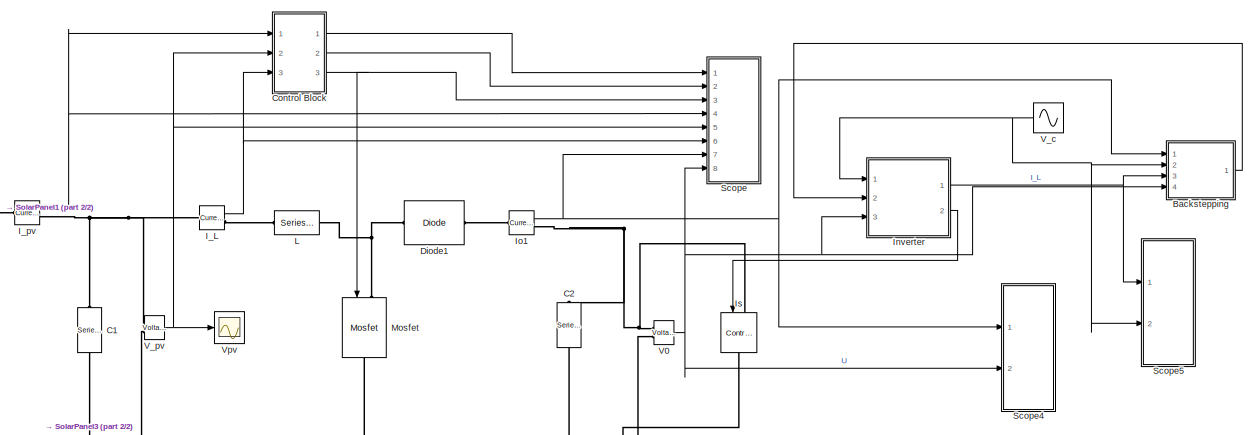
[diagram: root canvas - part 1/2, center side, full height]
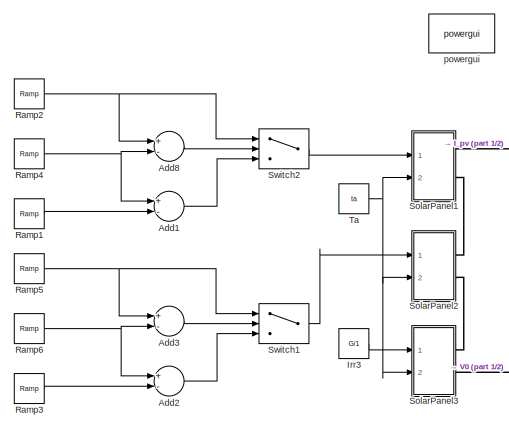
[diagram: root canvas - part 2/2, left side, full height]
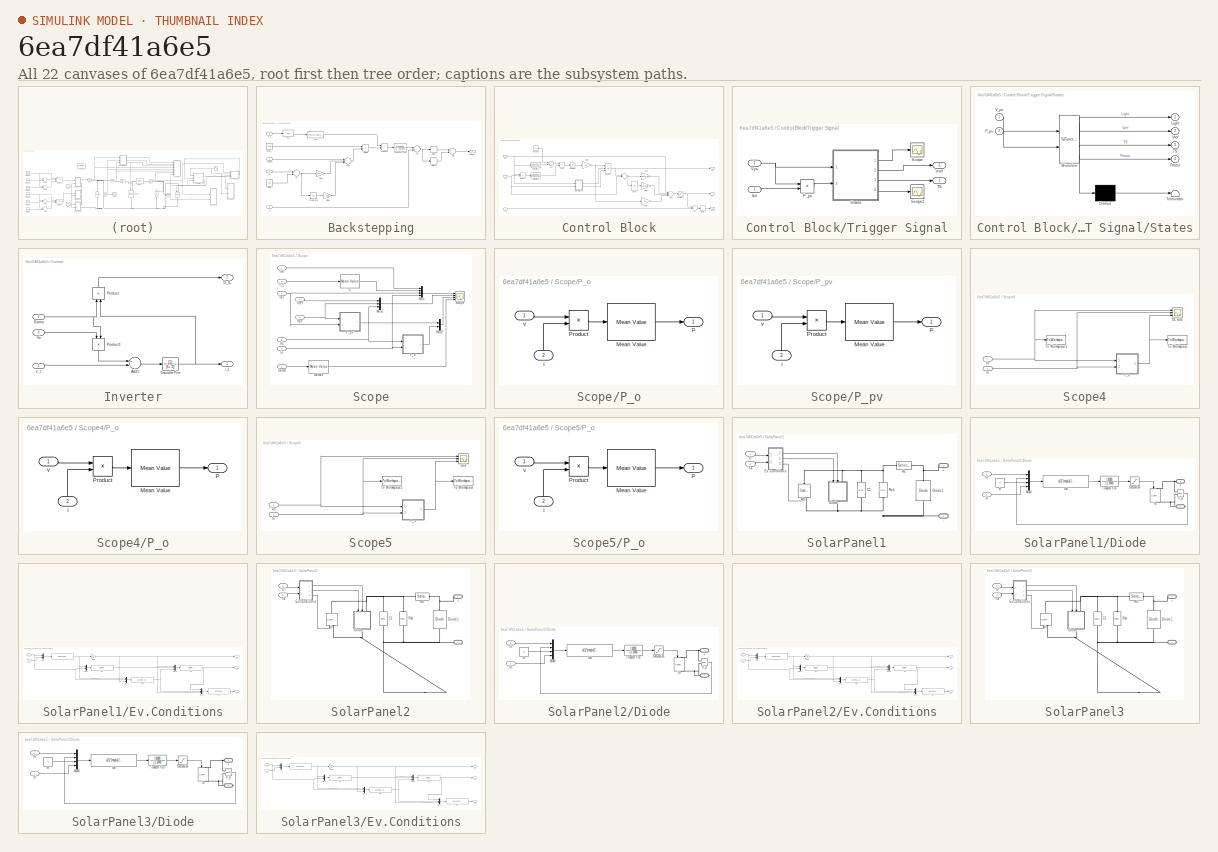
[diagram: thumbnail index - all 22 canvases of the model, root first then tree order]
MODEL slx_6ea7df41a6e5
KIND model
CONFIG AbsTol = auto
CONFIG FixedStep = auto
CONFIG MaxStep = 1e-4
CONFIG MinStep = auto
CONFIG RelTol = 1e-3
CONFIG SampleTimeConstraint = Unconstrained
CONFIG Solver = ode23s
CONFIG SolverMode = Auto
CONFIG SolverName = ode23s
CONFIG StartTime = 0.0
CONFIG StopTime = 0.1
BLOCK [Sum] Add1
  InputSameDT = off
  Inputs = +-
  OutDataTypeStr = Inherit: Inherit via internal rule
  Ports = [2, 1]
  SaturateOnIntegerOverflow = off
BLOCK [Sum] Add2
  InputSameDT = off
  Inputs = +-
  OutDataTypeStr = Inherit: Inherit via internal rule
  Ports = [2, 1]
  SaturateOnIntegerOverflow = off
BLOCK [Sum] Add3
  InputSameDT = off
  Inputs = +-
  OutDataTypeStr = Inherit: Inherit via internal rule
  Ports = [2, 1]
  SaturateOnIntegerOverflow = off
BLOCK [Sum] Add8
  InputSameDT = off
  Inputs = +-
  OutDataTypeStr = Inherit: Inherit via internal rule
  Ports = [2, 1]
  SaturateOnIntegerOverflow = off
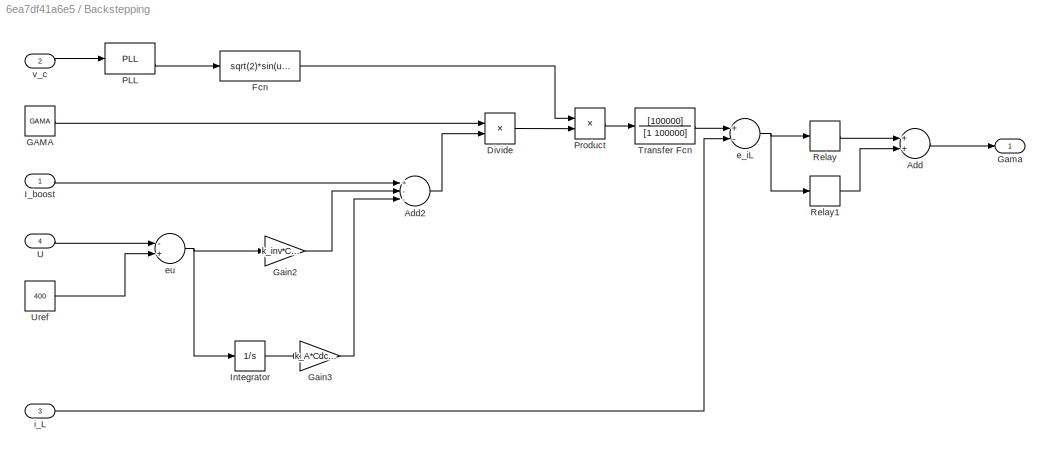
BLOCK [SubSystem] Backstepping
  Ports = [4, 1]
  RequestExecContextInheritance = off
  Variant = off
BLOCK [Sum] Backstepping/Add
  InputSameDT = off
  OutDataTypeStr = Inherit: Inherit via internal rule
  Ports = [2, 1]
  SaturateOnIntegerOverflow = off
BLOCK [Sum] Backstepping/Add2
  InputSameDT = off
  Inputs = +--
  OutDataTypeStr = Inherit: Inherit via internal rule
  Ports = [3, 1]
  SaturateOnIntegerOverflow = off
BLOCK [Product] Backstepping/Divide
  InputSameDT = off
  Inputs = /*
  OutDataTypeStr = Inherit: Inherit via internal rule
  Ports = [2, 1]
  RndMeth = Floor
  SaturateOnIntegerOverflow = off
BLOCK [Fcn] Backstepping/Fcn
  Expr = sqrt(2)*sin(u(1))
BLOCK [Constant] Backstepping/GAMA
  Value = GAMA
BLOCK [Gain] Backstepping/Gain2
  Gain = k_inv*Cdc_inv
  OutDataTypeStr = Inherit: Inherit via internal rule
  ParamDataTypeStr = Inherit: Inherit via internal rule
  SaturateOnIntegerOverflow = off
BLOCK [Gain] Backstepping/Gain3
  Gain = k_A*Cdc_inv
  OutDataTypeStr = Inherit: Inherit via internal rule
  ParamDataTypeStr = Inherit: Inherit via internal rule
  SaturateOnIntegerOverflow = off
BLOCK [Outport] Backstepping/Gama
  IconDisplay = Port number
BLOCK [Inport] Backstepping/I_boost
  IconDisplay = Port number
BLOCK [Integrator] Backstepping/Integrator
  LowerSaturationLimit = -30
  Ports = [1, 1]
  UpperSaturationLimit = 30
BLOCK [Reference] Backstepping/PLL  REF=powerlib_meascontrol/PLL/PLL
  Ports = [1, 2]
  SourceBlock = powerlib_meascontrol/PLL/PLL
  SourceType = PLL
BLOCK [Product] Backstepping/Product
  InputSameDT = off
  OutDataTypeStr = Inherit: Inherit via internal rule
  Ports = [2, 1]
  RndMeth = Floor
  SaturateOnIntegerOverflow = off
BLOCK [Relay] Backstepping/Relay
  InputProcessing = Elements as channels (sample based)
  OffOutputValue = -0.5
  OffSwitchValue = -delta_Ii
  OnOutputValue = 0.5
  OnSwitchValue = delta_Ii
  ZeroCross = off
BLOCK [Relay] Backstepping/Relay1
  InputProcessing = Elements as channels (sample based)
  OffOutputValue = -0.5
  OffSwitchValue = -delta_Ii/2
  OnOutputValue = 0.5
  OnSwitchValue = delta_Ii/2
  ZeroCross = off
BLOCK [TransferFcn] Backstepping/Transfer Fcn
  Denominator = [1 100000]
  Numerator = [100000]
BLOCK [Inport] Backstepping/U
  IconDisplay = Port number
  Port = 4
BLOCK [Constant] Backstepping/Uref
  Value = 400
BLOCK [Sum] Backstepping/e_iL
  InputSameDT = off
  Inputs = +-
  OutDataTypeStr = Inherit: Inherit via internal rule
  Ports = [2, 1]
  SaturateOnIntegerOverflow = off
BLOCK [Sum] Backstepping/eu
  InputSameDT = off
  Inputs = -+
  OutDataTypeStr = Inherit: Inherit via internal rule
  Ports = [2, 1]
  SaturateOnIntegerOverflow = off
BLOCK [Inport] Backstepping/i_L
  IconDisplay = Port number
  Port = 3
BLOCK [Inport] Backstepping/v_c
  IconDisplay = Port number
  Port = 2
BLOCK [Reference] C1  REF=powerlib/Elements/Series RLC Branch
  Ports = [0, 0, 0, 0, 0, 1, 1]
  SourceBlock = powerlib/Elements/Series RLC Branch
  SourceType = Series RLC Branch
BLOCK [Reference] C2  REF=powerlib/Elements/Series RLC Branch
  Ports = [0, 0, 0, 0, 0, 1, 1]
  SourceBlock = powerlib/Elements/Series RLC Branch
  SourceType = Series RLC Branch
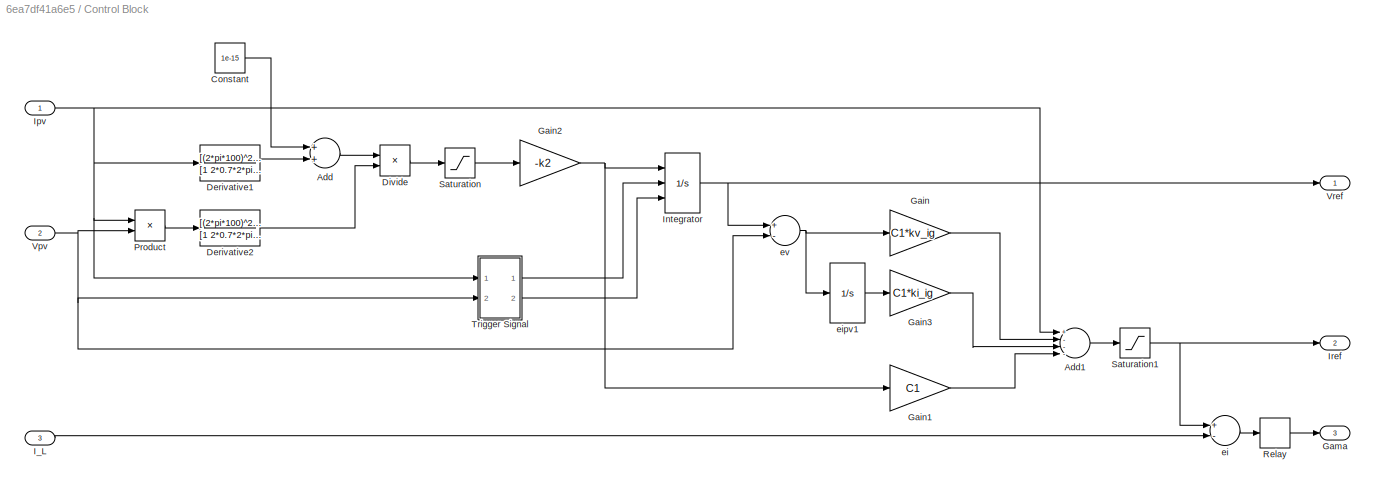
BLOCK [SubSystem] Control Block
  Ports = [3, 3]
  RequestExecContextInheritance = off
  Variant = off
BLOCK [Sum] Control Block/Add
  InputSameDT = off
  OutDataTypeStr = Inherit: Inherit via internal rule
  Ports = [2, 1]
  SaturateOnIntegerOverflow = off
BLOCK [Sum] Control Block/Add1
  InputSameDT = off
  Inputs = +---
  OutDataTypeStr = Inherit: Inherit via internal rule
  Ports = [4, 1]
  SaturateOnIntegerOverflow = off
BLOCK [Constant] Control Block/Constant
  Value = 1e-15
BLOCK [TransferFcn] Control Block/Derivative1
  Denominator = [1 2*0.7*2*pi*100 (2*pi*100)^2]
  Numerator = [(2*pi*100)^2 0]
BLOCK [TransferFcn] Control Block/Derivative2
  Denominator = [1 2*0.7*2*pi*100 (2*pi*100)^2]
  Numerator = [(2*pi*100)^2 0]
BLOCK [Product] Control Block/Divide
  InputSameDT = off
  Inputs = /*
  OutDataTypeStr = Inherit: Inherit via internal rule
  Ports = [2, 1]
  RndMeth = Floor
  SaturateOnIntegerOverflow = off
BLOCK [Gain] Control Block/Gain
  Gain = C1*kv_ig
  OutDataTypeStr = Inherit: Inherit via internal rule
  ParamDataTypeStr = Inherit: Inherit via internal rule
  SaturateOnIntegerOverflow = off
BLOCK [Gain] Control Block/Gain1
  Gain = C1
  OutDataTypeStr = Inherit: Inherit via internal rule
  ParamDataTypeStr = Inherit: Inherit via internal rule
  SaturateOnIntegerOverflow = off
BLOCK [Gain] Control Block/Gain2
  Gain = -k2
  OutDataTypeStr = Inherit: Inherit via internal rule
  ParamDataTypeStr = Inherit: Inherit via internal rule
  SaturateOnIntegerOverflow = off
BLOCK [Gain] Control Block/Gain3
  Gain = C1*ki_ig
  OutDataTypeStr = Inherit: Inherit via internal rule
  ParamDataTypeStr = Inherit: Inherit via internal rule
  SaturateOnIntegerOverflow = off
BLOCK [Outport] Control Block/Gama
  IconDisplay = Port number
  Port = 3
BLOCK [Inport] Control Block/I_L
  IconDisplay = Port number
  Port = 3
BLOCK [Integrator] Control Block/Integrator
  ExternalReset = rising
  InitialCondition = Voc*0.75
  InitialConditionSource = external
  LimitOutput = on
  LowerSaturationLimit = 0
  Ports = [3, 1]
  UpperSaturationLimit = Voc*3
BLOCK [Inport] Control Block/Ipv
  IconDisplay = Port number
BLOCK [Outport] Control Block/Iref
  IconDisplay = Port number
  Port = 2
BLOCK [Product] Control Block/Product
  InputSameDT = off
  Inputs = **
  OutDataTypeStr = Inherit: Inherit via internal rule
  Ports = [2, 1]
  RndMeth = Floor
  SaturateOnIntegerOverflow = off
BLOCK [Relay] Control Block/Relay
  InputProcessing = Elements as channels (sample based)
  OffSwitchValue = -delta_Il
  OnSwitchValue = delta_Il
BLOCK [Saturate] Control Block/Saturation
  InputPortMap = u0
  LowerLimit = -2
  Ports = [1, 1]
  UpperLimit = 2
BLOCK [Saturate] Control Block/Saturation1
  InputPortMap = u0
  LowerLimit = 0
  Ports = [1, 1]
  UpperLimit = Isc*1.2
BLOCK [SubSystem] Control Block/Trigger Signal
  Ports = [2, 2]
  RequestExecContextInheritance = off
  Variant = off
BLOCK [Inport] Control Block/Trigger Signal/Ipv
  IconDisplay = Port number
BLOCK [Product] Control Block/Trigger Signal/P_pv
  InputSameDT = off
  OutDataTypeStr = Inherit: Inherit via internal rule
  Ports = [2, 1]
  RndMeth = Floor
  SaturateOnIntegerOverflow = off
BLOCK [Scope] Control Block/Trigger Signal/Scope
  Ports = [1]
  ScopeSpecificationString = Simulink.scopes.TimeScopeBlockCfg('CurrentConfiguration', extmgr.ConfigurationSet(extmgr.Configuration('Core','General UI',true),extmgr.Configuration('Core','Source UI',true),extmgr.Configuration('Sources','WiredSimulink',true,'DataLoggingVariableName','ScopeData1'),extmgr.Configuration('Visuals','Time Domain',true,'SerializedDisplays',{struct('MinYLimReal','-0.25','MaxYLimReal','2.25','YLabelReal...<+1452ch>
BLOCK [Scope] Control Block/Trigger Signal/Scope1
  Ports = [1]
  ScopeSpecificationString = Simulink.scopes.TimeScopeBlockCfg('CurrentConfiguration', extmgr.ConfigurationSet(extmgr.Configuration('Core','General UI',true),extmgr.Configuration('Core','Source UI',true),extmgr.Configuration('Sources','WiredSimulink',true,'DataLoggingVariableName','ScopeData1'),extmgr.Configuration('Visuals','Time Domain',true,'SerializedDisplays',{struct('MinYLimReal','-90.85887','MaxYLimReal','817.72981','Y...<+1486ch>
BLOCK [SubSystem] Control Block/Trigger Signal/States
  ErrorFcn = Stateflow.Translate.translate
  PermitHierarchicalResolution = ExplicitOnly
  Ports = [2, 4]
  RequestExecContextInheritance = off
  SFBlockType = Chart
  TreatAsAtomicUnit = on
  Variant = off
BLOCK [Demux] Control Block/Trigger Signal/States/ Demux 
  Outputs = 1
  Ports = [1, 1]
BLOCK [S-Function] Control Block/Trigger Signal/States/ SFunction 
  EnableBusSupport = on
  FunctionName = sf_sfun
  Parameters = GREEN,OFF,ON,ORANGE,RED,Voc,t_int,trigger_signal
  PortCounts = [2 5]
  Ports = [2, 5]
  SFunctionDeploymentMode = off
  Tag = Stateflow S-Function PanelwInverter_Backstepping 3
BLOCK [Terminator] Control Block/Trigger Signal/States/ Terminator 
BLOCK [Outport] Control Block/Trigger Signal/States/Light
  IconDisplay = Port number
BLOCK [Inport] Control Block/Trigger Signal/States/P_pv
  IconDisplay = Port number
  Port = 2
BLOCK [Outport] Control Block/Trigger Signal/States/Pmem
  IconDisplay = Port number
  Port = 4
BLOCK [Outport] Control Block/Trigger Signal/States/TS
  IconDisplay = Port number
  Port = 3
BLOCK [Inport] Control Block/Trigger Signal/States/V_pv
  IconDisplay = Port number
BLOCK [Outport] Control Block/Trigger Signal/States/Vref
  IconDisplay = Port number
  Port = 2
BLOCK [Outport] Control Block/Trigger Signal/TS
  IconDisplay = Port number
BLOCK [Inport] Control Block/Trigger Signal/Vpv
  IconDisplay = Port number
  Port = 2
BLOCK [Outport] Control Block/Trigger Signal/Vref
  IconDisplay = Port number
  Port = 2
BLOCK [Inport] Control Block/Vpv
  IconDisplay = Port number
  Port = 2
BLOCK [Outport] Control Block/Vref
  IconDisplay = Port number
BLOCK [Sum] Control Block/ei
  InputSameDT = off
  Inputs = +-
  OutDataTypeStr = Inherit: Inherit via internal rule
  Ports = [2, 1]
  SaturateOnIntegerOverflow = off
BLOCK [Integrator] Control Block/eipv1
  LowerSaturationLimit = 0
  Ports = [1, 1]
  UpperSaturationLimit = Voc*N
BLOCK [Sum] Control Block/ev
  InputSameDT = off
  Inputs = +-
  OutDataTypeStr = Inherit: Inherit via internal rule
  Ports = [2, 1]
  SaturateOnIntegerOverflow = off
BLOCK [Reference] Diode1  REF=powerlib/Power
Electronics/Diode
  Ports = [0, 0, 0, 0, 0, 1, 1]
  SourceBlock = powerlib/Power\nElectronics/Diode
  SourceType = Diode
BLOCK [Reference] I_L  REF=powerlib/Measurements/Current Measurement
  Ports = [0, 1, 0, 0, 0, 1, 1]
  SourceBlock = powerlib/Measurements/Current Measurement
  SourceType = Current Measurement
BLOCK [Reference] I_pv  REF=powerlib/Measurements/Current Measurement
  Ports = [0, 1, 0, 0, 0, 1, 1]
  SourceBlock = powerlib/Measurements/Current Measurement
  SourceType = Current Measurement
BLOCK [SubSystem] Inverter
  Ports = [3, 2]
  RequestExecContextInheritance = off
  Variant = off
BLOCK [Sum] Inverter/Add1
  InputSameDT = off
  Inputs = +-
  OutDataTypeStr = Inherit: Inherit via internal rule
  Ports = [2, 1]
  SaturateOnIntegerOverflow = off
BLOCK [Outport] Inverter/G_IL
  IconDisplay = Port number
  Port = 2
BLOCK [Inport] Inverter/Gama
  IconDisplay = Port number
  Port = 2
BLOCK [Product] Inverter/Product
  InputSameDT = off
  OutDataTypeStr = Inherit: Inherit via internal rule
  Ports = [2, 1]
  RndMeth = Floor
  SaturateOnIntegerOverflow = off
BLOCK [Product] Inverter/Product1
  InputSameDT = off
  OutDataTypeStr = Inherit: Inherit via internal rule
  Ports = [2, 1]
  RndMeth = Floor
  SaturateOnIntegerOverflow = off
BLOCK [TransferFcn] Inverter/Transfer Fcn
  Denominator = [Li 3]
BLOCK [Inport] Inverter/Vo
  IconDisplay = Port number
  Port = 3
BLOCK [Outport] Inverter/i_L
  IconDisplay = Port number
BLOCK [Inport] Inverter/v_c
  IconDisplay = Port number
BLOCK [Reference] Io1  REF=powerlib/Measurements/Current Measurement
  Ports = [0, 1, 0, 0, 0, 1, 1]
  SourceBlock = powerlib/Measurements/Current Measurement
  SourceType = Current Measurement
BLOCK [Constant] Irr3
  Value = G/1
BLOCK [Reference] Is  REF=powerlib/Electrical
Sources/Controlled Current Source
  Ports = [1, 0, 0, 0, 0, 1, 1]
  SourceBlock = powerlib/Electrical\nSources/Controlled Current Source
  SourceType = Controlled Current Source
BLOCK [Reference] L  REF=powerlib/Elements/Series RLC Branch
  Ports = [0, 0, 0, 0, 0, 1, 1]
  SourceBlock = powerlib/Elements/Series RLC Branch
  SourceType = Series RLC Branch
BLOCK [Reference] Mosfet  REF=powerlib/Power
Electronics/Mosfet
  Ports = [1, 0, 0, 0, 0, 1, 1]
  SourceBlock = powerlib/Power\nElectronics/Mosfet
  SourceType = Mosfet
BLOCK [Reference] Ramp1  REF=simulink/Sources/Ramp
  Ports = [0, 1]
  SourceBlock = simulink/Sources/Ramp
  SourceType = Ramp
BLOCK [Reference] Ramp2  REF=simulink/Sources/Ramp
  Ports = [0, 1]
  SourceBlock = simulink/Sources/Ramp
  SourceType = Ramp
BLOCK [Reference] Ramp3  REF=simulink/Sources/Ramp
  Ports = [0, 1]
  SourceBlock = simulink/Sources/Ramp
  SourceType = Ramp
BLOCK [Reference] Ramp4  REF=simulink/Sources/Ramp
  Ports = [0, 1]
  SourceBlock = simulink/Sources/Ramp
  SourceType = Ramp
BLOCK [Reference] Ramp5  REF=simulink/Sources/Ramp
  Ports = [0, 1]
  SourceBlock = simulink/Sources/Ramp
  SourceType = Ramp
BLOCK [Reference] Ramp6  REF=simulink/Sources/Ramp
  Ports = [0, 1]
  SourceBlock = simulink/Sources/Ramp
  SourceType = Ramp
BLOCK [SubSystem] Scope
  Ports = [8]
  RequestExecContextInheritance = off
  Variant = off
BLOCK [Inport] Scope/Gama
  IconDisplay = Port number
  Port = 3
BLOCK [Reference] Scope/Gama1  REF=powerlib_extras/Measurements/Mean Value
  Ports = [1, 1]
  SourceBlock = powerlib_extras/Measurements/Mean Value
  SourceType = Mean value
BLOCK [Reference] Scope/IL  REF=powerlib_extras/Measurements/Mean Value
  Ports = [1, 1]
  SourceBlock = powerlib_extras/Measurements/Mean Value
  SourceType = Mean value
BLOCK [Inport] Scope/I_L
  IconDisplay = Port number
  Port = 6
BLOCK [Inport] Scope/Io
  IconDisplay = Port number
  Port = 7
BLOCK [Inport] Scope/Ipv
  IconDisplay = Port number
  Port = 4
BLOCK [Inport] Scope/Iref
  IconDisplay = Port number
  Port = 2
BLOCK [Mux] Scope/Mux
  DisplayOption = bar
  Ports = [4, 1]
BLOCK [Mux] Scope/Mux1
  DisplayOption = bar
  Inputs = 3
  Ports = [3, 1]
BLOCK [Mux] Scope/Mux2
  DisplayOption = bar
  Inputs = 2
  Ports = [2, 1]
BLOCK [SubSystem] Scope/P_o
  Ports = [2, 1]
  RequestExecContextInheritance = off
  Variant = off
BLOCK [Reference] Scope/P_o/Mean Value  REF=powerlib_extras/Measurements/Mean Value
  Ports = [1, 1]
  SourceBlock = powerlib_extras/Measurements/Mean Value
  SourceType = Mean value
BLOCK [Outport] Scope/P_o/P
  IconDisplay = Port number
BLOCK [Product] Scope/P_o/Product
  InputSameDT = off
  OutDataTypeStr = Inherit: Inherit via internal rule
  Ports = [2, 1]
  RndMeth = Floor
  SaturateOnIntegerOverflow = off
BLOCK [Inport] Scope/P_o/i
  IconDisplay = Port number
  Port = 2
BLOCK [Inport] Scope/P_o/v
  IconDisplay = Port number
BLOCK [SubSystem] Scope/P_pv
  Ports = [2, 1]
  RequestExecContextInheritance = off
  Variant = off
BLOCK [Reference] Scope/P_pv/Mean Value  REF=powerlib_extras/Measurements/Mean Value
  Ports = [1, 1]
  SourceBlock = powerlib_extras/Measurements/Mean Value
  SourceType = Mean value
BLOCK [Outport] Scope/P_pv/P
  IconDisplay = Port number
BLOCK [Product] Scope/P_pv/Product
  InputSameDT = off
  OutDataTypeStr = Inherit: Inherit via internal rule
  Ports = [2, 1]
  RndMeth = Floor
  SaturateOnIntegerOverflow = off
BLOCK [Inport] Scope/P_pv/i
  IconDisplay = Port number
  Port = 2
BLOCK [Inport] Scope/P_pv/v
  IconDisplay = Port number
BLOCK [Scope] Scope/Scope
  NumInputPorts = 4
  Ports = [4]
  ScopeSpecificationString = Simulink.scopes.TimeScopeBlockCfg('CurrentConfiguration', extmgr.ConfigurationSet(extmgr.Configuration('Core','General UI',true),extmgr.Configuration('Core','Source UI',true),extmgr.Configuration('Sources','WiredSimulink',true),extmgr.Configuration('Visuals','Time Domain',true,'SerializedDisplays',{struct('MinYLimReal','-1.72608','MaxYLimReal','12.86806','YLabelReal','','MinYLimMag','0.00000','Max...<+3457ch>
BLOCK [Inport] Scope/Vo
  IconDisplay = Port number
  Port = 8
BLOCK [Inport] Scope/Vpv
  IconDisplay = Port number
  Port = 5
BLOCK [Inport] Scope/Vref
  IconDisplay = Port number
BLOCK [SubSystem] Scope4
  Ports = [2]
  RequestExecContextInheritance = off
  Variant = off
BLOCK [Scope] Scope4/DC side
  NumInputPorts = 3
  Ports = [3]
  ScopeSpecificationString = Simulink.scopes.TimeScopeBlockCfg('CurrentConfiguration', extmgr.ConfigurationSet(extmgr.Configuration('Core','General UI',true),extmgr.Configuration('Core','Source UI',true),extmgr.Configuration('Sources','WiredSimulink',true),extmgr.Configuration('Visuals','Time Domain',true,'SerializedDisplays',{struct('MinYLimReal','389.15785','MaxYLimReal','412.70712','YLabelReal','','MinYLimMag','389.15785',...<+2750ch>
BLOCK [Inport] Scope4/Io
  IconDisplay = Port number
BLOCK [SubSystem] Scope4/P_o
  Ports = [2, 1]
  RequestExecContextInheritance = off
  Variant = off
BLOCK [Reference] Scope4/P_o/Mean Value  REF=powerlib_extras/Measurements/Mean Value
  Ports = [1, 1]
  SourceBlock = powerlib_extras/Measurements/Mean Value
  SourceType = Mean value
BLOCK [Outport] Scope4/P_o/P
  IconDisplay = Port number
BLOCK [Product] Scope4/P_o/Product
  InputSameDT = off
  OutDataTypeStr = Inherit: Inherit via internal rule
  Ports = [2, 1]
  RndMeth = Floor
  SaturateOnIntegerOverflow = off
BLOCK [Inport] Scope4/P_o/i
  IconDisplay = Port number
  Port = 2
BLOCK [Inport] Scope4/P_o/v
  IconDisplay = Port number
BLOCK [ToWorkspace] Scope4/To Workspace
  FixptAsFi = on
  MaxDataPoints = inf
  Ports = [1]
  SampleTime = -1
  Save2DSignal = 3-D array (concatenate along third dimension)
  SaveFormat = Timeseries
  VariableName = Po
BLOCK [ToWorkspace] Scope4/To Workspace1
  FixptAsFi = on
  MaxDataPoints = inf
  Ports = [1]
  SampleTime = -1
  Save2DSignal = 3-D array (concatenate along third dimension)
  SaveFormat = Timeseries
  VariableName = Vo
BLOCK [Inport] Scope4/Vo
  IconDisplay = Port number
  Port = 2
BLOCK [SubSystem] Scope5
  Ports = [2]
  RequestExecContextInheritance = off
  Variant = off
BLOCK [Scope] Scope5/Grid
  NumInputPorts = 3
  Ports = [3]
  ScopeSpecificationString = Simulink.scopes.TimeScopeBlockCfg('CurrentConfiguration', extmgr.ConfigurationSet(extmgr.Configuration('Core','General UI',true),extmgr.Configuration('Core','Source UI',true),extmgr.Configuration('Sources','WiredSimulink',true),extmgr.Configuration('Visuals','Time Domain',true,'SerializedDisplays',{struct('MinYLimReal','-406.5864','MaxYLimReal','406.5864','YLabelReal','','MinYLimMag',' 0.00000','M...<+2742ch>
BLOCK [Inport] Scope5/Io
  IconDisplay = Port number
BLOCK [SubSystem] Scope5/P_o
  Ports = [2, 1]
  RequestExecContextInheritance = off
  Variant = off
BLOCK [Reference] Scope5/P_o/Mean Value  REF=powerlib_extras/Measurements/Mean Value
  Ports = [1, 1]
  SourceBlock = powerlib_extras/Measurements/Mean Value
  SourceType = Mean value
BLOCK [Outport] Scope5/P_o/P
  IconDisplay = Port number
BLOCK [Product] Scope5/P_o/Product
  InputSameDT = off
  OutDataTypeStr = Inherit: Inherit via internal rule
  Ports = [2, 1]
  RndMeth = Floor
  SaturateOnIntegerOverflow = off
BLOCK [Inport] Scope5/P_o/i
  IconDisplay = Port number
  Port = 2
BLOCK [Inport] Scope5/P_o/v
  IconDisplay = Port number
BLOCK [ToWorkspace] Scope5/To Workspace
  FixptAsFi = on
  MaxDataPoints = inf
  Ports = [1]
  SampleTime = -1
  Save2DSignal = 3-D array (concatenate along third dimension)
  SaveFormat = Timeseries
  VariableName = Pg
BLOCK [ToWorkspace] Scope5/To Workspace1
  FixptAsFi = on
  MaxDataPoints = inf
  Ports = [1]
  SampleTime = -1
  Save2DSignal = 3-D array (concatenate along third dimension)
  SaveFormat = Timeseries
  VariableName = Ig
BLOCK [Inport] Scope5/Vo
  IconDisplay = Port number
  Port = 2
BLOCK [SubSystem] SolarPanel1
  Ports = [2, 0, 0, 0, 0, 0, 2]
  RequestExecContextInheritance = off
  Variant = off
BLOCK [PMIOPort] SolarPanel1/+
  Port = 1
  Side = Right
BLOCK [PMIOPort] SolarPanel1/-
  Port = 2
  Side = Right
BLOCK [Reference] SolarPanel1/C1  REF=powerlib/Elements/Series RLC Branch
  Ports = [0, 0, 0, 0, 0, 1, 1]
  SourceBlock = powerlib/Elements/Series RLC Branch
  SourceType = Series RLC Branch
BLOCK [SubSystem] SolarPanel1/Diode
  AncestorBlock = re_lib/Solar/PV Array/Diode Rsh
  Ports = [2, 0, 0, 0, 0, 1, 1]
  RequestExecContextInheritance = off
  Variant = off
BLOCK [PMIOPort] SolarPanel1/Diode/+
  Port = 1
  Side = Left
BLOCK [PMIOPort] SolarPanel1/Diode/-
  Port = 2
  Side = Right
BLOCK [Fcn] SolarPanel1/Diode/I0d
  Expr = u(1)*(exp(u(2)/(u(3)*u(4)))-1)
BLOCK [Reference] SolarPanel1/Diode/Id  REF=powerlib/Electrical
Sources/Controlled Current Source
  Ports = [1, 0, 0, 0, 0, 1, 1]
  SourceBlock = powerlib/Electrical\nSources/Controlled Current Source
  SourceType = Controlled Current Source
BLOCK [Inport] SolarPanel1/Diode/Io
  IconDisplay = Port number
BLOCK [Mux] SolarPanel1/Diode/Mux4
  DisplayOption = bar
  Ports = [4, 1]
BLOCK [Saturate] SolarPanel1/Diode/Saturation
  InputPortMap = u0
  LowerLimit = 0
  Ports = [1, 1]
  UpperLimit = Isc
BLOCK [TransferFcn] SolarPanel1/Diode/Transfer Fcn
  Denominator = [1 1000]
  Numerator = [1000]
BLOCK [Reference] SolarPanel1/Diode/V_d  REF=powerlib/Measurements/Voltage Measurement
  Ports = [0, 1, 0, 0, 0, 2]
  SourceBlock = powerlib/Measurements/Voltage Measurement
  SourceType = Voltage Measurement
BLOCK [Inport] SolarPanel1/Diode/Vt
  IconDisplay = Port number
  Port = 2
BLOCK [Constant] SolarPanel1/Diode/m
  Value = m
BLOCK [Reference] SolarPanel1/Diode1  REF=powerlib/Power
Electronics/Diode
  Ports = [0, 0, 0, 0, 0, 1, 1]
  SourceBlock = powerlib/Power\nElectronics/Diode
  SourceType = Diode
BLOCK [SubSystem] SolarPanel1/Ev.Conditions
  Ports = [2, 3]
  RequestExecContextInheritance = off
  Variant = off
BLOCK [Inport] SolarPanel1/Ev.Conditions/G
  IconDisplay = Port number
BLOCK [Gain] SolarPanel1/Ev.Conditions/Gain
  Gain = K/q
  OutDataTypeStr = Inherit: Inherit via internal rule
  ParamDataTypeStr = Inherit: Inherit via internal rule
  SaturateOnIntegerOverflow = off
BLOCK [Fcn] SolarPanel1/Ev.Conditions/I0o
  Expr = (u(2) - (u(3) - Rs*u(2))/ Rsh) * exp(-u(3)/ (m*u(1)))
BLOCK [Fcn] SolarPanel1/Ev.Conditions/I0s
  Expr = u(1) * exp(u(2)/ (m*u(3))) + u(2)/ Rsh
BLOCK [Outport] SolarPanel1/Ev.Conditions/Io
  IconDisplay = Port number
  Port = 2
BLOCK [Outport] SolarPanel1/Ev.Conditions/Is
  IconDisplay = Port number
  Port = 3
BLOCK [Fcn] SolarPanel1/Ev.Conditions/Isc
  Expr = u(2)/ Gr * (Iscr + miu_Isc*(u(1) - Tr))
BLOCK [Mux] SolarPanel1/Ev.Conditions/Mux
  DisplayOption = bar
  Inputs = 2
  Ports = [2, 1]
BLOCK [Mux] SolarPanel1/Ev.Conditions/Mux1
  DisplayOption = bar
  Inputs = 2
  Ports = [2, 1]
BLOCK [Mux] SolarPanel1/Ev.Conditions/Mux2
  DisplayOption = bar
  Inputs = 3
  Ports = [3, 1]
BLOCK [Mux] SolarPanel1/Ev.Conditions/Mux3
  DisplayOption = bar
  Inputs = 3
  Ports = [3, 1]
BLOCK [Mux] SolarPanel1/Ev.Conditions/Mux4
  DisplayOption = bar
  Inputs = 3
  Ports = [3, 1]
BLOCK [Inport] SolarPanel1/Ev.Conditions/Ta
  IconDisplay = Port number
  Port = 2
BLOCK [Fcn] SolarPanel1/Ev.Conditions/Tc
  Expr = u(2)+u(1)*(NOCT-20)/800+T
BLOCK [Fcn] SolarPanel1/Ev.Conditions/Voc
  Expr = Vocr + miu_Voc*(u(1) - Tr) + m*u(3)*log(u(2)/Gr)
BLOCK [Outport] SolarPanel1/Ev.Conditions/Vt
  IconDisplay = Port number
BLOCK [Inport] SolarPanel1/G
  IconDisplay = Port number
BLOCK [Reference] SolarPanel1/Is  REF=powerlib/Electrical
Sources/Controlled Current Source
  Ports = [1, 0, 0, 0, 0, 1, 1]
  SourceBlock = powerlib/Electrical\nSources/Controlled Current Source
  SourceType = Controlled Current Source
BLOCK [Reference] SolarPanel1/Rs  REF=powerlib/Elements/Series RLC Branch
  Ports = [0, 0, 0, 0, 0, 1, 1]
  SourceBlock = powerlib/Elements/Series RLC Branch
  SourceType = Series RLC Branch
BLOCK [Reference] SolarPanel1/Rsh  REF=powerlib/Elements/Series RLC Branch
  Ports = [0, 0, 0, 0, 0, 1, 1]
  SourceBlock = powerlib/Elements/Series RLC Branch
  SourceType = Series RLC Branch
BLOCK [Inport] SolarPanel1/Ta
  IconDisplay = Port number
  Port = 2
BLOCK [SubSystem] SolarPanel2
  Ports = [2, 0, 0, 0, 0, 0, 2]
  RequestExecContextInheritance = off
  Variant = off
BLOCK [PMIOPort] SolarPanel2/+
  Port = 1
  Side = Right
BLOCK [PMIOPort] SolarPanel2/-
  Port = 2
  Side = Right
BLOCK [Reference] SolarPanel2/C1  REF=powerlib/Elements/Series RLC Branch
  Ports = [0, 0, 0, 0, 0, 1, 1]
  SourceBlock = powerlib/Elements/Series RLC Branch
  SourceType = Series RLC Branch
BLOCK [SubSystem] SolarPanel2/Diode
  AncestorBlock = re_lib/Solar/PV Array/Diode Rsh
  Ports = [2, 0, 0, 0, 0, 1, 1]
  RequestExecContextInheritance = off
  Variant = off
BLOCK [PMIOPort] SolarPanel2/Diode/+
  Port = 1
  Side = Left
BLOCK [PMIOPort] SolarPanel2/Diode/-
  Port = 2
  Side = Right
BLOCK [Fcn] SolarPanel2/Diode/I0d
  Expr = u(1)*(exp(u(2)/(u(3)*u(4)))-1)
BLOCK [Reference] SolarPanel2/Diode/Id  REF=powerlib/Electrical
Sources/Controlled Current Source
  Ports = [1, 0, 0, 0, 0, 1, 1]
  SourceBlock = powerlib/Electrical\nSources/Controlled Current Source
  SourceType = Controlled Current Source
BLOCK [Inport] SolarPanel2/Diode/Io
  IconDisplay = Port number
BLOCK [Mux] SolarPanel2/Diode/Mux4
  DisplayOption = bar
  Ports = [4, 1]
BLOCK [Saturate] SolarPanel2/Diode/Saturation
  InputPortMap = u0
  LowerLimit = 0
  Ports = [1, 1]
  UpperLimit = Isc
BLOCK [TransferFcn] SolarPanel2/Diode/Transfer Fcn
  Denominator = [1 1000]
  Numerator = [1000]
BLOCK [Reference] SolarPanel2/Diode/V_d  REF=powerlib/Measurements/Voltage Measurement
  Ports = [0, 1, 0, 0, 0, 2]
  SourceBlock = powerlib/Measurements/Voltage Measurement
  SourceType = Voltage Measurement
BLOCK [Inport] SolarPanel2/Diode/Vt
  IconDisplay = Port number
  Port = 2
BLOCK [Constant] SolarPanel2/Diode/m
  Value = m
BLOCK [Reference] SolarPanel2/Diode1  REF=powerlib/Power
Electronics/Diode
  Ports = [0, 0, 0, 0, 0, 1, 1]
  SourceBlock = powerlib/Power\nElectronics/Diode
  SourceType = Diode
BLOCK [SubSystem] SolarPanel2/Ev.Conditions
  Ports = [2, 3]
  RequestExecContextInheritance = off
  Variant = off
BLOCK [Inport] SolarPanel2/Ev.Conditions/G
  IconDisplay = Port number
BLOCK [Gain] SolarPanel2/Ev.Conditions/Gain
  Gain = K/q
  OutDataTypeStr = Inherit: Inherit via internal rule
  ParamDataTypeStr = Inherit: Inherit via internal rule
  SaturateOnIntegerOverflow = off
BLOCK [Fcn] SolarPanel2/Ev.Conditions/I0o
  Expr = (u(2) - (u(3) - Rs*u(2))/ Rsh) * exp(-u(3)/ (m*u(1)))
BLOCK [Fcn] SolarPanel2/Ev.Conditions/I0s
  Expr = u(1) * exp(u(2)/ (m*u(3))) + u(2)/ Rsh
BLOCK [Outport] SolarPanel2/Ev.Conditions/Io
  IconDisplay = Port number
  Port = 2
BLOCK [Outport] SolarPanel2/Ev.Conditions/Is
  IconDisplay = Port number
  Port = 3
BLOCK [Fcn] SolarPanel2/Ev.Conditions/Isc
  Expr = u(2)/ Gr * (Iscr + miu_Isc*(u(1) - Tr))
BLOCK [Mux] SolarPanel2/Ev.Conditions/Mux
  DisplayOption = bar
  Inputs = 2
  Ports = [2, 1]
BLOCK [Mux] SolarPanel2/Ev.Conditions/Mux1
  DisplayOption = bar
  Inputs = 2
  Ports = [2, 1]
BLOCK [Mux] SolarPanel2/Ev.Conditions/Mux2
  DisplayOption = bar
  Inputs = 3
  Ports = [3, 1]
BLOCK [Mux] SolarPanel2/Ev.Conditions/Mux3
  DisplayOption = bar
  Inputs = 3
  Ports = [3, 1]
BLOCK [Mux] SolarPanel2/Ev.Conditions/Mux4
  DisplayOption = bar
  Inputs = 3
  Ports = [3, 1]
BLOCK [Inport] SolarPanel2/Ev.Conditions/Ta
  IconDisplay = Port number
  Port = 2
BLOCK [Fcn] SolarPanel2/Ev.Conditions/Tc
  Expr = u(2)+u(1)*(NOCT-20)/800+T
BLOCK [Fcn] SolarPanel2/Ev.Conditions/Voc
  Expr = Vocr + miu_Voc*(u(1) - Tr) + m*u(3)*log(u(2)/Gr)
BLOCK [Outport] SolarPanel2/Ev.Conditions/Vt
  IconDisplay = Port number
BLOCK [Inport] SolarPanel2/G
  IconDisplay = Port number
BLOCK [Reference] SolarPanel2/Is  REF=powerlib/Electrical
Sources/Controlled Current Source
  Ports = [1, 0, 0, 0, 0, 1, 1]
  SourceBlock = powerlib/Electrical\nSources/Controlled Current Source
  SourceType = Controlled Current Source
BLOCK [Reference] SolarPanel2/Rs  REF=powerlib/Elements/Series RLC Branch
  Ports = [0, 0, 0, 0, 0, 1, 1]
  SourceBlock = powerlib/Elements/Series RLC Branch
  SourceType = Series RLC Branch
BLOCK [Reference] SolarPanel2/Rsh  REF=powerlib/Elements/Series RLC Branch
  Ports = [0, 0, 0, 0, 0, 1, 1]
  SourceBlock = powerlib/Elements/Series RLC Branch
  SourceType = Series RLC Branch
BLOCK [Inport] SolarPanel2/Ta
  IconDisplay = Port number
  Port = 2
BLOCK [SubSystem] SolarPanel3
  Ports = [2, 0, 0, 0, 0, 0, 2]
  RequestExecContextInheritance = off
  Variant = off
BLOCK [PMIOPort] SolarPanel3/+
  Port = 1
  Side = Right
BLOCK [PMIOPort] SolarPanel3/-
  Port = 2
  Side = Right
BLOCK [Reference] SolarPanel3/C1  REF=powerlib/Elements/Series RLC Branch
  Ports = [0, 0, 0, 0, 0, 1, 1]
  SourceBlock = powerlib/Elements/Series RLC Branch
  SourceType = Series RLC Branch
BLOCK [SubSystem] SolarPanel3/Diode
  AncestorBlock = re_lib/Solar/PV Array/Diode Rsh
  Ports = [2, 0, 0, 0, 0, 1, 1]
  RequestExecContextInheritance = off
  Variant = off
BLOCK [PMIOPort] SolarPanel3/Diode/+
  Port = 1
  Side = Left
BLOCK [PMIOPort] SolarPanel3/Diode/-
  Port = 2
  Side = Right
BLOCK [Fcn] SolarPanel3/Diode/I0d
  Expr = u(1)*(exp(u(2)/(u(3)*u(4)))-1)
BLOCK [Reference] SolarPanel3/Diode/Id  REF=powerlib/Electrical
Sources/Controlled Current Source
  Ports = [1, 0, 0, 0, 0, 1, 1]
  SourceBlock = powerlib/Electrical\nSources/Controlled Current Source
  SourceType = Controlled Current Source
BLOCK [Inport] SolarPanel3/Diode/Io
  IconDisplay = Port number
BLOCK [Mux] SolarPanel3/Diode/Mux4
  DisplayOption = bar
  Ports = [4, 1]
BLOCK [Saturate] SolarPanel3/Diode/Saturation
  InputPortMap = u0
  LowerLimit = 0
  Ports = [1, 1]
  UpperLimit = Isc
BLOCK [TransferFcn] SolarPanel3/Diode/Transfer Fcn
  Denominator = [1 1000]
  Numerator = [1000]
BLOCK [Reference] SolarPanel3/Diode/V_d  REF=powerlib/Measurements/Voltage Measurement
  Ports = [0, 1, 0, 0, 0, 2]
  SourceBlock = powerlib/Measurements/Voltage Measurement
  SourceType = Voltage Measurement
BLOCK [Inport] SolarPanel3/Diode/Vt
  IconDisplay = Port number
  Port = 2
BLOCK [Constant] SolarPanel3/Diode/m
  Value = m
BLOCK [Reference] SolarPanel3/Diode1  REF=powerlib/Power
Electronics/Diode
  Ports = [0, 0, 0, 0, 0, 1, 1]
  SourceBlock = powerlib/Power\nElectronics/Diode
  SourceType = Diode
BLOCK [SubSystem] SolarPanel3/Ev.Conditions
  Ports = [2, 3]
  RequestExecContextInheritance = off
  Variant = off
BLOCK [Inport] SolarPanel3/Ev.Conditions/G
  IconDisplay = Port number
BLOCK [Gain] SolarPanel3/Ev.Conditions/Gain
  Gain = K/q
  OutDataTypeStr = Inherit: Inherit via internal rule
  ParamDataTypeStr = Inherit: Inherit via internal rule
  SaturateOnIntegerOverflow = off
BLOCK [Fcn] SolarPanel3/Ev.Conditions/I0o
  Expr = (u(2) - (u(3) - Rs*u(2))/ Rsh) * exp(-u(3)/ (m*u(1)))
BLOCK [Fcn] SolarPanel3/Ev.Conditions/I0s
  Expr = u(1) * exp(u(2)/ (m*u(3))) + u(2)/ Rsh
BLOCK [Outport] SolarPanel3/Ev.Conditions/Io
  IconDisplay = Port number
  Port = 2
BLOCK [Outport] SolarPanel3/Ev.Conditions/Is
  IconDisplay = Port number
  Port = 3
BLOCK [Fcn] SolarPanel3/Ev.Conditions/Isc
  Expr = u(2)/ Gr * (Iscr + miu_Isc*(u(1) - Tr))
BLOCK [Mux] SolarPanel3/Ev.Conditions/Mux
  DisplayOption = bar
  Inputs = 2
  Ports = [2, 1]
BLOCK [Mux] SolarPanel3/Ev.Conditions/Mux1
  DisplayOption = bar
  Inputs = 2
  Ports = [2, 1]
BLOCK [Mux] SolarPanel3/Ev.Conditions/Mux2
  DisplayOption = bar
  Inputs = 3
  Ports = [3, 1]
BLOCK [Mux] SolarPanel3/Ev.Conditions/Mux3
  DisplayOption = bar
  Inputs = 3
  Ports = [3, 1]
BLOCK [Mux] SolarPanel3/Ev.Conditions/Mux4
  DisplayOption = bar
  Inputs = 3
  Ports = [3, 1]
BLOCK [Inport] SolarPanel3/Ev.Conditions/Ta
  IconDisplay = Port number
  Port = 2
BLOCK [Fcn] SolarPanel3/Ev.Conditions/Tc
  Expr = u(2)+u(1)*(NOCT-20)/800+T
BLOCK [Fcn] SolarPanel3/Ev.Conditions/Voc
  Expr = Vocr + miu_Voc*(u(1) - Tr) + m*u(3)*log(u(2)/Gr)
BLOCK [Outport] SolarPanel3/Ev.Conditions/Vt
  IconDisplay = Port number
BLOCK [Inport] SolarPanel3/G
  IconDisplay = Port number
BLOCK [Reference] SolarPanel3/Is  REF=powerlib/Electrical
Sources/Controlled Current Source
  Ports = [1, 0, 0, 0, 0, 1, 1]
  SourceBlock = powerlib/Electrical\nSources/Controlled Current Source
  SourceType = Controlled Current Source
BLOCK [Reference] SolarPanel3/Rs  REF=powerlib/Elements/Series RLC Branch
  Ports = [0, 0, 0, 0, 0, 1, 1]
  SourceBlock = powerlib/Elements/Series RLC Branch
  SourceType = Series RLC Branch
BLOCK [Reference] SolarPanel3/Rsh  REF=powerlib/Elements/Series RLC Branch
  Ports = [0, 0, 0, 0, 0, 1, 1]
  SourceBlock = powerlib/Elements/Series RLC Branch
  SourceType = Series RLC Branch
BLOCK [Inport] SolarPanel3/Ta
  IconDisplay = Port number
  Port = 2
BLOCK [Switch] Switch1
  Criteria = u2 > Threshold
  InputSameDT = off
  SaturateOnIntegerOverflow = off
BLOCK [Switch] Switch2
  Criteria = u2 > Threshold
  InputSameDT = off
  SaturateOnIntegerOverflow = off
BLOCK [Constant] Ta
  Value = ta
BLOCK [Reference] V0  REF=powerlib/Measurements/Voltage Measurement
  Ports = [0, 1, 0, 0, 0, 2]
  SourceBlock = powerlib/Measurements/Voltage Measurement
  SourceType = Voltage Measurement
BLOCK [Sin] V_c
  Amplitude = sqrt(2)*230
  Frequency = 2*pi*50
  Ports = [0, 1]
  SampleTime = 0
BLOCK [Reference] V_pv  REF=powerlib/Measurements/Voltage Measurement
  Ports = [0, 1, 0, 0, 0, 2]
  SourceBlock = powerlib/Measurements/Voltage Measurement
  SourceType = Voltage Measurement
BLOCK [Scope] Vpv
  Ports = [1]
  ScopeSpecificationString = Simulink.scopes.TimeScopeBlockCfg('CurrentConfiguration', extmgr.ConfigurationSet(extmgr.Configuration('Core','General UI',true),extmgr.Configuration('Core','Source UI',true),extmgr.Configuration('Sources','WiredSimulink',true,'DataLoggingVariableName','ScopeData1'),extmgr.Configuration('Visuals','Time Domain',true,'SerializedDisplays',{struct('MinYLimReal','-12.93801','MaxYLimReal','116.31696','Y...<+1521ch>
BLOCK [Reference] powergui  REF=powerlib/powergui
  Ports = []
  Priority = 1
  SourceBlock = powerlib/powergui
  SourceType = PSB option menu block
  UserDataPersistent = on
LINE Add1:1 -> Switch2:3
LINE Add2:1 -> Switch1:3
LINE Add3:1 -> Switch1:2
LINE Add8:1 -> Switch2:2
LINE Backstepping/Add2:1 -> Backstepping/Divide:2
LINE Backstepping/Add:1 -> Backstepping/Gama:1
LINE Backstepping/Divide:1 -> Backstepping/Product:2
LINE Backstepping/Fcn:1 -> Backstepping/Product:1
LINE Backstepping/GAMA:1 -> Backstepping/Divide:1
LINE Backstepping/Gain2:1 -> Backstepping/Add2:2
LINE Backstepping/Gain3:1 -> Backstepping/Add2:3
LINE Backstepping/I_boost:1 -> Backstepping/Add2:1
LINE Backstepping/Integrator:1 -> Backstepping/Gain3:1
LINE Backstepping/PLL:2 -> Backstepping/Fcn:1
LINE Backstepping/Product:1 -> Backstepping/Transfer Fcn:1
LINE Backstepping/Relay1:1 -> Backstepping/Add:2
LINE Backstepping/Relay:1 -> Backstepping/Add:1
LINE Backstepping/Transfer Fcn:1 -> Backstepping/e_iL:1
LINE Backstepping/U:1 -> Backstepping/eu:1
LINE Backstepping/Uref:1 -> Backstepping/eu:2
NET Backstepping/e_iL:1 -> Backstepping/Relay1:1, Backstepping/Relay:1
NET Backstepping/eu:1 -> Backstepping/Gain2:1, Backstepping/Integrator:1
LINE Backstepping/i_L:1 -> Backstepping/e_iL:2
LINE Backstepping/v_c:1 -> Backstepping/PLL:1
LINE Backstepping:1 -> Inverter:2
LINE Control Block/Add1:1 -> Control Block/Saturation1:1
LINE Control Block/Add:1 -> Control Block/Divide:1
LINE Control Block/Constant:1 -> Control Block/Add:1
LINE Control Block/Derivative1:1 -> Control Block/Add:2
LINE Control Block/Derivative2:1 -> Control Block/Divide:2
LINE Control Block/Divide:1 -> Control Block/Saturation:1
LINE Control Block/Gain1:1 -> Control Block/Add1:4
NET Control Block/Gain2:1 -> Control Block/Gain1:1, Control Block/Integrator:1
LINE Control Block/Gain3:1 -> Control Block/Add1:3
LINE Control Block/Gain:1 -> Control Block/Add1:2
LINE Control Block/I_L:1 -> Control Block/ei:2
NET Control Block/Integrator:1 -> Control Block/Vref:1, Control Block/ev:1
NET Control Block/Ipv:1 -> Control Block/Add1:1, Control Block/Derivative1:1, Control Block/Product:1, Control Block/Trigger Signal:1
LINE Control Block/Product:1 -> Control Block/Derivative2:1
LINE Control Block/Relay:1 -> Control Block/Gama:1
NET Control Block/Saturation1:1 -> Control Block/Iref:1, Control Block/ei:1
LINE Control Block/Saturation:1 -> Control Block/Gain2:1
LINE Control Block/Trigger Signal/Ipv:1 -> Control Block/Trigger Signal/P_pv:2
LINE Control Block/Trigger Signal/P_pv:1 -> Control Block/Trigger Signal/States:2
LINE Control Block/Trigger Signal/States:1 -> Control Block/Trigger Signal/Scope:1
LINE Control Block/Trigger Signal/States:2 -> Control Block/Trigger Signal/Vref:1
LINE Control Block/Trigger Signal/States:3 -> Control Block/Trigger Signal/TS:1
LINE Control Block/Trigger Signal/States:4 -> Control Block/Trigger Signal/Scope1:1
NET Control Block/Trigger Signal/Vpv:1 -> Control Block/Trigger Signal/P_pv:1, Control Block/Trigger Signal/States:1
LINE Control Block/Trigger Signal:1 -> Control Block/Integrator:2
LINE Control Block/Trigger Signal:2 -> Control Block/Integrator:3
NET Control Block/Vpv:1 -> Control Block/Product:2, Control Block/Trigger Signal:2, Control Block/ev:2
LINE Control Block/ei:1 -> Control Block/Relay:1
LINE Control Block/eipv1:1 -> Control Block/Gain3:1
NET Control Block/ev:1 -> Control Block/Gain:1, Control Block/eipv1:1
LINE Control Block:1 -> Scope:1
LINE Control Block:2 -> Scope:2
NET Control Block:3 -> Mosfet:1, Scope:3
NET I_L:1 -> Control Block:3, Scope:6
NET I_pv:1 -> Control Block:1, Scope:4
LINE Inverter/Add1:1 -> Inverter/Transfer Fcn:1
NET Inverter/Gama:1 -> Inverter/Product1:2, Inverter/Product:1
LINE Inverter/Product1:1 -> Inverter/Add1:1
LINE Inverter/Product:1 -> Inverter/G_IL:1
NET Inverter/Transfer Fcn:1 -> Inverter/Product:2, Inverter/i_L:1
LINE Inverter/Vo:1 -> Inverter/Product1:1
LINE Inverter/v_c:1 -> Inverter/Add1:2
NET Inverter:1 -> Backstepping:3, Scope5:1
LINE Inverter:2 -> Is:1
NET Io1:1 -> Backstepping:1, Scope4:1, Scope:7
LINE Irr3:1 -> SolarPanel3:1
LINE Ramp1:1 -> Add1:2
NET Ramp2:1 -> Add8:1, Switch2:1
LINE Ramp3:1 -> Add2:2
NET Ramp4:1 -> Add1:1, Add8:2
NET Ramp5:1 -> Add3:1, Switch1:1
NET Ramp6:1 -> Add2:1, Add3:2
LINE Scope/Gama1:1 -> Scope/Scope:4
LINE Scope/Gama:1 -> Scope/Gama1:1
LINE Scope/IL:1 -> Scope/Mux:2
LINE Scope/I_L:1 -> Scope/IL:1
NET Scope/Io:1 -> Scope/Mux:4, Scope/P_o:2
NET Scope/Ipv:1 -> Scope/Mux:3, Scope/P_pv:2
LINE Scope/Iref:1 -> Scope/Mux:1
LINE Scope/Mux1:1 -> Scope/Scope:2
LINE Scope/Mux2:1 -> Scope/Scope:3
LINE Scope/Mux:1 -> Scope/Scope:1
LINE Scope/P_o/Mean Value:1 -> Scope/P_o/P:1
LINE Scope/P_o/Product:1 -> Scope/P_o/Mean Value:1
LINE Scope/P_o/i:1 -> Scope/P_o/Product:2
LINE Scope/P_o/v:1 -> Scope/P_o/Product:1
LINE Scope/P_o:1 -> Scope/Mux2:2
LINE Scope/P_pv/Mean Value:1 -> Scope/P_pv/P:1
LINE Scope/P_pv/Product:1 -> Scope/P_pv/Mean Value:1
LINE Scope/P_pv/i:1 -> Scope/P_pv/Product:2
LINE Scope/P_pv/v:1 -> Scope/P_pv/Product:1
LINE Scope/P_pv:1 -> Scope/Mux2:1
NET Scope/Vo:1 -> Scope/Mux1:3, Scope/P_o:1
NET Scope/Vpv:1 -> Scope/Mux1:2, Scope/P_pv:1
LINE Scope/Vref:1 -> Scope/Mux1:1
NET Scope4/Io:1 -> Scope4/DC side:2, Scope4/P_o:2
LINE Scope4/P_o/Mean Value:1 -> Scope4/P_o/P:1
LINE Scope4/P_o/Product:1 -> Scope4/P_o/Mean Value:1
LINE Scope4/P_o/i:1 -> Scope4/P_o/Product:2
LINE Scope4/P_o/v:1 -> Scope4/P_o/Product:1
NET Scope4/P_o:1 -> Scope4/DC side:3, Scope4/To Workspace:1
NET Scope4/Vo:1 -> Scope4/DC side:1, Scope4/P_o:1, Scope4/To Workspace1:1
NET Scope5/Io:1 -> Scope5/Grid:2, Scope5/P_o:2, Scope5/To Workspace1:1
LINE Scope5/P_o/Mean Value:1 -> Scope5/P_o/P:1
LINE Scope5/P_o/Product:1 -> Scope5/P_o/Mean Value:1
LINE Scope5/P_o/i:1 -> Scope5/P_o/Product:2
LINE Scope5/P_o/v:1 -> Scope5/P_o/Product:1
NET Scope5/P_o:1 -> Scope5/Grid:3, Scope5/To Workspace:1
NET Scope5/Vo:1 -> Scope5/Grid:1, Scope5/P_o:1
NET SolarPanel1/Ev.Conditions/G:1 -> SolarPanel1/Ev.Conditions/Mux1:2, SolarPanel1/Ev.Conditions/Mux2:2, SolarPanel1/Ev.Conditions/Mux:1
NET SolarPanel1/Ev.Conditions/Gain:1 -> SolarPanel1/Ev.Conditions/Mux2:3, SolarPanel1/Ev.Conditions/Mux3:1, SolarPanel1/Ev.Conditions/Mux4:3, SolarPanel1/Ev.Conditions/Vt:1
NET SolarPanel1/Ev.Conditions/I0o:1 -> SolarPanel1/Ev.Conditions/Io:1, SolarPanel1/Ev.Conditions/Mux4:1
LINE SolarPanel1/Ev.Conditions/I0s:1 -> SolarPanel1/Ev.Conditions/Is:1
LINE SolarPanel1/Ev.Conditions/Isc:1 -> SolarPanel1/Ev.Conditions/Mux3:2
LINE SolarPanel1/Ev.Conditions/Mux1:1 -> SolarPanel1/Ev.Conditions/Isc:1
LINE SolarPanel1/Ev.Conditions/Mux2:1 -> SolarPanel1/Ev.Conditions/Voc:1
LINE SolarPanel1/Ev.Conditions/Mux3:1 -> SolarPanel1/Ev.Conditions/I0o:1
LINE SolarPanel1/Ev.Conditions/Mux4:1 -> SolarPanel1/Ev.Conditions/I0s:1
LINE SolarPanel1/Ev.Conditions/Mux:1 -> SolarPanel1/Ev.Conditions/Tc:1
LINE SolarPanel1/Ev.Conditions/Ta:1 -> SolarPanel1/Ev.Conditions/Mux:2
NET SolarPanel1/Ev.Conditions/Tc:1 -> SolarPanel1/Ev.Conditions/Gain:1, SolarPanel1/Ev.Conditions/Mux1:1, SolarPanel1/Ev.Conditions/Mux2:1
NET SolarPanel1/Ev.Conditions/Voc:1 -> SolarPanel1/Ev.Conditions/Mux3:3, SolarPanel1/Ev.Conditions/Mux4:2
LINE SolarPanel1/Ev.Conditions:1 -> SolarPanel1/Diode:2
LINE SolarPanel1/Ev.Conditions:2 -> SolarPanel1/Diode:1
LINE SolarPanel1/Ev.Conditions:3 -> SolarPanel1/Is:1
LINE SolarPanel1/G:1 -> SolarPanel1/Ev.Conditions:1
LINE SolarPanel1/Ta:1 -> SolarPanel1/Ev.Conditions:2
NET SolarPanel2/Ev.Conditions/G:1 -> SolarPanel2/Ev.Conditions/Mux1:2, SolarPanel2/Ev.Conditions/Mux2:2, SolarPanel2/Ev.Conditions/Mux:1
NET SolarPanel2/Ev.Conditions/Gain:1 -> SolarPanel2/Ev.Conditions/Mux2:3, SolarPanel2/Ev.Conditions/Mux3:1, SolarPanel2/Ev.Conditions/Mux4:3, SolarPanel2/Ev.Conditions/Vt:1
NET SolarPanel2/Ev.Conditions/I0o:1 -> SolarPanel2/Ev.Conditions/Io:1, SolarPanel2/Ev.Conditions/Mux4:1
LINE SolarPanel2/Ev.Conditions/I0s:1 -> SolarPanel2/Ev.Conditions/Is:1
LINE SolarPanel2/Ev.Conditions/Isc:1 -> SolarPanel2/Ev.Conditions/Mux3:2
LINE SolarPanel2/Ev.Conditions/Mux1:1 -> SolarPanel2/Ev.Conditions/Isc:1
LINE SolarPanel2/Ev.Conditions/Mux2:1 -> SolarPanel2/Ev.Conditions/Voc:1
LINE SolarPanel2/Ev.Conditions/Mux3:1 -> SolarPanel2/Ev.Conditions/I0o:1
LINE SolarPanel2/Ev.Conditions/Mux4:1 -> SolarPanel2/Ev.Conditions/I0s:1
LINE SolarPanel2/Ev.Conditions/Mux:1 -> SolarPanel2/Ev.Conditions/Tc:1
LINE SolarPanel2/Ev.Conditions/Ta:1 -> SolarPanel2/Ev.Conditions/Mux:2
NET SolarPanel2/Ev.Conditions/Tc:1 -> SolarPanel2/Ev.Conditions/Gain:1, SolarPanel2/Ev.Conditions/Mux1:1, SolarPanel2/Ev.Conditions/Mux2:1
NET SolarPanel2/Ev.Conditions/Voc:1 -> SolarPanel2/Ev.Conditions/Mux3:3, SolarPanel2/Ev.Conditions/Mux4:2
LINE SolarPanel2/Ev.Conditions:1 -> SolarPanel2/Diode:2
LINE SolarPanel2/Ev.Conditions:2 -> SolarPanel2/Diode:1
LINE SolarPanel2/Ev.Conditions:3 -> SolarPanel2/Is:1
LINE SolarPanel2/G:1 -> SolarPanel2/Ev.Conditions:1
LINE SolarPanel2/Ta:1 -> SolarPanel2/Ev.Conditions:2
NET SolarPanel3/Ev.Conditions/G:1 -> SolarPanel3/Ev.Conditions/Mux1:2, SolarPanel3/Ev.Conditions/Mux2:2, SolarPanel3/Ev.Conditions/Mux:1
NET SolarPanel3/Ev.Conditions/Gain:1 -> SolarPanel3/Ev.Conditions/Mux2:3, SolarPanel3/Ev.Conditions/Mux3:1, SolarPanel3/Ev.Conditions/Mux4:3, SolarPanel3/Ev.Conditions/Vt:1
NET SolarPanel3/Ev.Conditions/I0o:1 -> SolarPanel3/Ev.Conditions/Io:1, SolarPanel3/Ev.Conditions/Mux4:1
LINE SolarPanel3/Ev.Conditions/I0s:1 -> SolarPanel3/Ev.Conditions/Is:1
LINE SolarPanel3/Ev.Conditions/Isc:1 -> SolarPanel3/Ev.Conditions/Mux3:2
LINE SolarPanel3/Ev.Conditions/Mux1:1 -> SolarPanel3/Ev.Conditions/Isc:1
LINE SolarPanel3/Ev.Conditions/Mux2:1 -> SolarPanel3/Ev.Conditions/Voc:1
LINE SolarPanel3/Ev.Conditions/Mux3:1 -> SolarPanel3/Ev.Conditions/I0o:1
LINE SolarPanel3/Ev.Conditions/Mux4:1 -> SolarPanel3/Ev.Conditions/I0s:1
LINE SolarPanel3/Ev.Conditions/Mux:1 -> SolarPanel3/Ev.Conditions/Tc:1
LINE SolarPanel3/Ev.Conditions/Ta:1 -> SolarPanel3/Ev.Conditions/Mux:2
NET SolarPanel3/Ev.Conditions/Tc:1 -> SolarPanel3/Ev.Conditions/Gain:1, SolarPanel3/Ev.Conditions/Mux1:1, SolarPanel3/Ev.Conditions/Mux2:1
NET SolarPanel3/Ev.Conditions/Voc:1 -> SolarPanel3/Ev.Conditions/Mux3:3, SolarPanel3/Ev.Conditions/Mux4:2
LINE SolarPanel3/Ev.Conditions:1 -> SolarPanel3/Diode:2
LINE SolarPanel3/Ev.Conditions:2 -> SolarPanel3/Diode:1
LINE SolarPanel3/Ev.Conditions:3 -> SolarPanel3/Is:1
LINE SolarPanel3/G:1 -> SolarPanel3/Ev.Conditions:1
LINE SolarPanel3/Ta:1 -> SolarPanel3/Ev.Conditions:2
LINE Switch1:1 -> SolarPanel2:1
LINE Switch2:1 -> SolarPanel1:1
NET Ta:1 -> SolarPanel1:2, SolarPanel2:2, SolarPanel3:2
NET V0:1 -> Backstepping:4, Inverter:3, Scope4:2, Scope:8
NET V_c:1 -> Backstepping:2, Inverter:1, Scope5:2
NET V_pv:1 -> Control Block:2, Scope:5, Vpv:1
PNET net1: C1:LConn1 -- I_L:LConn1 -- I_pv:RConn1 -- V_pv:LConn1
PNET net2: C1:RConn1 -- C2:RConn1 -- Is:RConn1 -- Mosfet:RConn1 -- SolarPanel3:RConn2 -- V0:LConn2 -- V_pv:LConn2
PNET net3: C2:LConn1 -- Io1:RConn1 -- Is:LConn1 -- V0:LConn1
PNET net4: Diode1:LConn1 -- L:RConn1 -- Mosfet:LConn1
PLINE Diode1:RConn1 -- Io1:LConn1
PLINE I_L:RConn1 -- L:LConn1
PLINE I_pv:LConn1 -- SolarPanel1:RConn1
PNET net5: SolarPanel1/+:RConn1 -- SolarPanel1/Diode1:RConn1 -- SolarPanel1/Rs:RConn1
PNET net6: SolarPanel1/-:RConn1 -- SolarPanel1/C1:RConn1 -- SolarPanel1/Diode1:LConn1 -- SolarPanel1/Diode:RConn1 -- SolarPanel1/Is:LConn1 -- SolarPanel1/Rsh:RConn1
PNET net7: SolarPanel1/C1:LConn1 -- SolarPanel1/Diode:LConn1 -- SolarPanel1/Is:RConn1 -- SolarPanel1/Rs:LConn1 -- SolarPanel1/Rsh:LConn1
PLINE SolarPanel1:RConn2 -- SolarPanel2:RConn1
PNET net8: SolarPanel2/+:RConn1 -- SolarPanel2/Diode1:RConn1 -- SolarPanel2/Rs:RConn1
PNET net9: SolarPanel2/-:RConn1 -- SolarPanel2/C1:RConn1 -- SolarPanel2/Diode1:LConn1 -- SolarPanel2/Diode:RConn1 -- SolarPanel2/Is:LConn1 -- SolarPanel2/Rsh:RConn1
PNET net10: SolarPanel2/C1:LConn1 -- SolarPanel2/Diode:LConn1 -- SolarPanel2/Is:RConn1 -- SolarPanel2/Rs:LConn1 -- SolarPanel2/Rsh:LConn1
PLINE SolarPanel2:RConn2 -- SolarPanel3:RConn1
PNET net11: SolarPanel3/+:RConn1 -- SolarPanel3/Diode1:RConn1 -- SolarPanel3/Rs:RConn1
PNET net12: SolarPanel3/-:RConn1 -- SolarPanel3/C1:RConn1 -- SolarPanel3/Diode1:LConn1 -- SolarPanel3/Diode:RConn1 -- SolarPanel3/Is:LConn1 -- SolarPanel3/Rsh:RConn1
PNET net13: SolarPanel3/C1:LConn1 -- SolarPanel3/Diode:LConn1 -- SolarPanel3/Is:RConn1 -- SolarPanel3/Rs:LConn1 -- SolarPanel3/Rsh:LConn1
note: NET lines group one-source signal fan-out (src -> all destinations, sorted); 1:1 wires keep LINE; PNET lines group multi-terminal physical nets as a canonical sorted terminal list (undirected conserving connections); 2-terminal nets keep the pairwise PLINE form
CHART Control Block/Trigger Signal/States states=22 transitions=26
  STATE_LABEL 'Setup1\nentry:\nLight = RED;\nVref = Voc*0.85;\nTS = ON;\n'
  STATE_LABEL 'Setup2\nentry:\nTS = OFF;\n'
  STATE_LABEL 'Setup3\nentry:\nPmem = P_pv;\nVmem = V_pv;\nVref = Voc*0.85*2;\nTS = ON;\n'
  STATE_LABEL 'SteadyState\nentry:\nLight = GREEN;\ndelta_P = 0;\nduring:\ndelta_P = abs(P_pv - Pmem) - Pmem*0.1;'
  STATE_LABEL 'NewSearch1\nentry:\nLight = ORANGE;\nPmem = P_pv;\nVmem = V_pv;\nif V_pv-Voc < 0\n    dir = 1;\nelse\n    dir = -1;\nend\nVref = V_pv+dir*Voc*0.85;\nTS = ON;\n'
  STATE_LABEL 'NewSearch2\nentry:\nTS = OFF;'
  STATE_LABEL 'NewSearch3\nentry:\nif P_pv > Pmem\n    Pmem = P_pv;\n    Vmem = V_pv;\nend\nshift = 0;\nif V_pv-Voc < 0\n    dir = 1;\n    shift = 1;\nend\nVref = V_pv+dir*Voc*0.85;\nTS = ON;'
  STATE_LABEL 'NewSearch3_2\nentry:\nTS = OFF;'
  STATE_LABEL 'NewSearch3_1\nentry:\nshift = 0;'
  STATE_LABEL 'Setup6\nentry:\nTS = OFF;'
  STATE_LABEL 'Setup5\nentry:\nif P_pv > Pmem\n    Pmem = P_pv;\n    Vmem = V_pv;\nend\nVref = Voc*0.85*3;\nTS = ON;'
  STATE_LABEL 'Setup4\nentry:\nTS = OFF;\nshift = 0;\n'
  STATE_LABEL 'NewSearch5\nentry:\nif P_pv > Pmem\n    Pmem = P_pv;\n    Vmem = V_pv;\n    Vref = Vmem;\nelseif Vmem < 2*Voc && Vmem>Voc\n    Vref = 2*Voc*0.85;\nelse\n    shift = shift + 1;\n    Vref = V_pv-dir*Voc*0.85;\nend\nTS = ON;'
  STATE_LABEL 'NewSearch4\nentry:\nTS = OFF;'
  STATE_LABEL 'NewSearch5_2\nentry:\nTS = OFF;'
  STATE_LABEL 'Setup7\nentry:\nif P_pv > Pmem\n    Pmem = P_pv;\n    Vmem = V_pv;\n    Vref = Vmem;\nelseif Vmem > Voc\n    Vref = 2*Voc*0.85;\nelseif shift == 0\n    shift = shift + 1;\n    Vref = Voc*0.85*2;\nelse\n    shift = shift + 1;\n    Vref = Vmem;\nend\nTS = ON;'
  STATE_LABEL 'Setup7_2\nentry:\nTS = OFF;'
  STATE_LABEL 'NewSearch5_1\nentry:'
  STATE_LABEL 'Setup7_1\nentry:'
  STATE_LABEL 'NewSearch6\nentry:\nTS = OFF;'
  STATE_LABEL 'Setup8\nentry:\nTS = OFF;\nshift = 0;'
  STATE_LABEL 'Setup9\nentry:\nPmem = P_pv;\nVmem = V_pv;'
